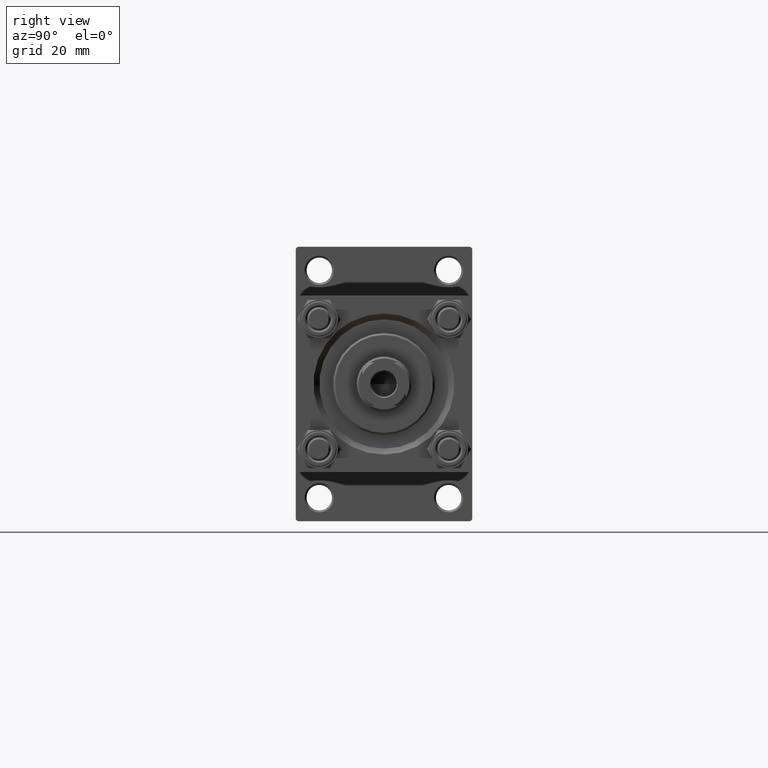
[diagram: clean part render]
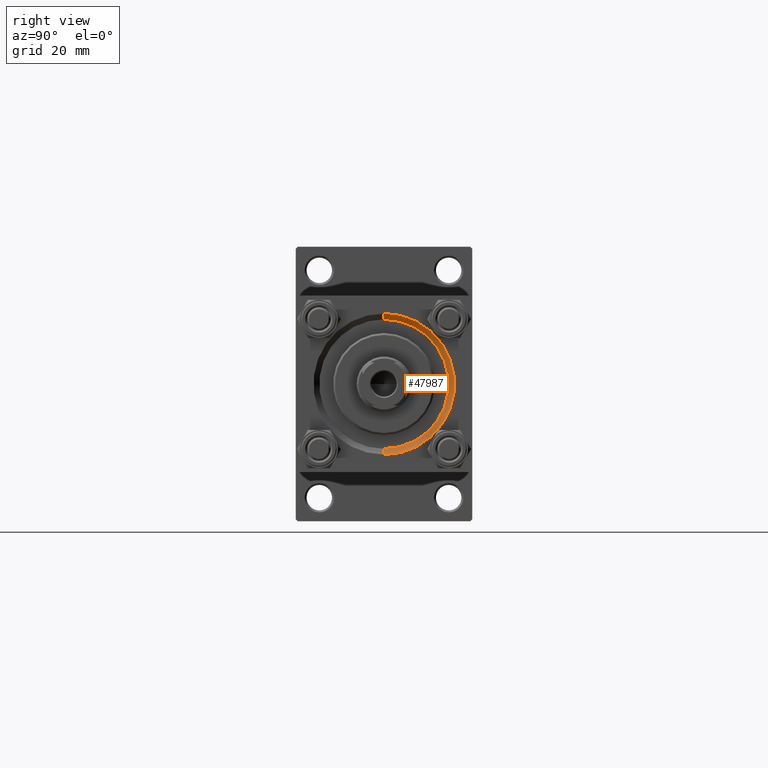
[diagram: same view with one face highlighted and labeled with its STEP entity id]
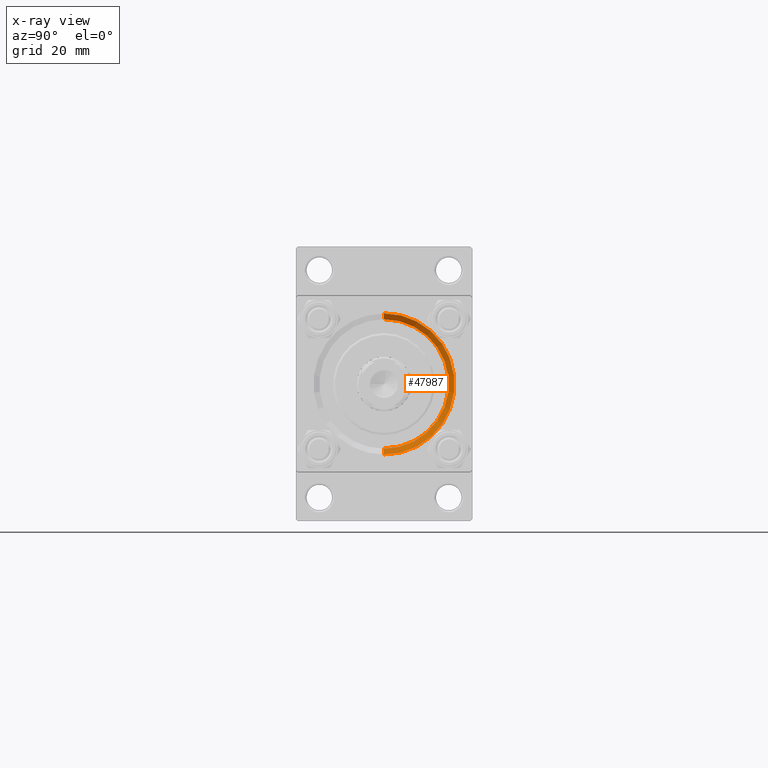
[diagram: x-ray of the same camera — body ghosted, the highlighted face saturated]
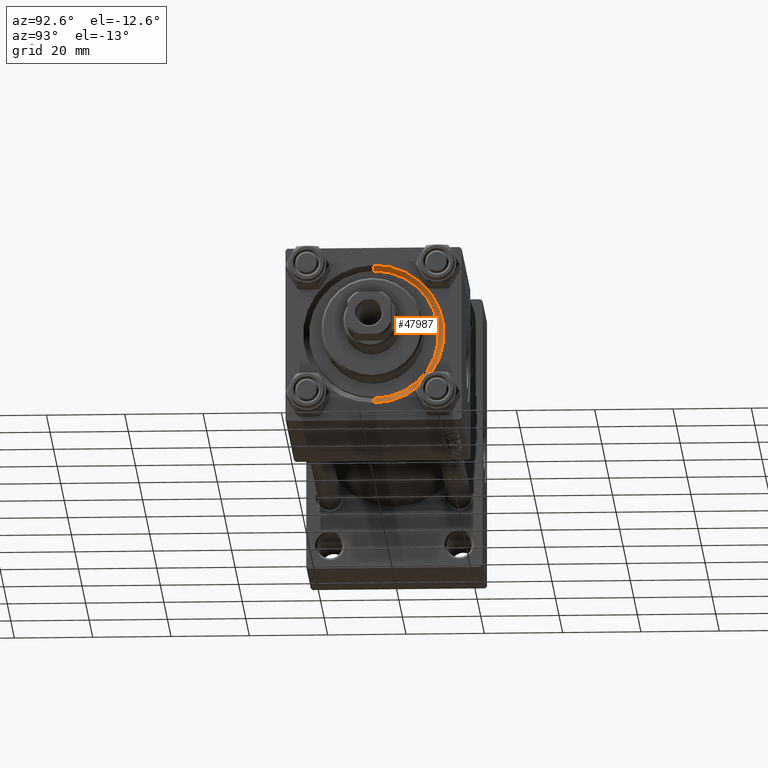
[diagram: same view with one face highlighted and labeled with its STEP entity id]
A machine part, right view. The second image highlights one B-rep face of the part: STEP entity #47987.
The next image is the same camera in x-ray: the body ghosted, the highlighted face saturated — about 0% of this face is hidden behind the body in this view.
A second angle (auxiliary view) of the same face is appended — the face is thin or edge-on in the first view.
In plain terms, the highlighted conical surface has half-angle 45 deg.
Its self-contained STEP definition (entity closure, byte-faithful):
#1167 = CONICAL_SURFACE ( 'NONE', #14881, 16.50000000000000000, 0.7853981633974482790 ) ;
#2080 = DIRECTION ( 'NONE',  ( -1.000000000000000000, 0.000000000000000000, -0.000000000000000000 ) ) ;
#3623 = EDGE_CURVE ( 'NONE', #32581, #46466, #22275, .T. ) ;
#3665 = ORIENTED_EDGE ( 'NONE', *, *, #11472, .T. ) ;
#5052 = CARTESIAN_POINT ( 'NONE',  ( 140.5000000000000000, 0.000000000000000000, 0.000000000000000000 ) ) ;
#5100 = DIRECTION ( 'NONE',  ( 0.000000000000000000, 0.000000000000000000, 1.000000000000000000 ) ) ;
#6965 = AXIS2_PLACEMENT_3D ( 'NONE', #20485, #2080, #5100 ) ;
#8619 = DIRECTION ( 'NONE',  ( 1.000000000000000000, 0.000000000000000000, 0.000000000000000000 ) ) ;
#8872 = FACE_OUTER_BOUND ( 'NONE', #12863, .T. ) ;
#11003 = CARTESIAN_POINT ( 'NONE',  ( 140.5000000000000000, 0.000000000000000000, -16.50000000000000000 ) ) ;
#11472 = EDGE_CURVE ( 'NONE', #46290, #46466, #45630, .T. ) ;
#11778 = CARTESIAN_POINT ( 'NONE',  ( 142.0000000000000284, 0.000000000000000000, -18.00000000000000355 ) ) ;
#12863 = EDGE_LOOP ( 'NONE', ( #25283, #18619, #3665, #31637 ) ) ;
#13630 = DIRECTION ( 'NONE',  ( 0.000000000000000000, 0.000000000000000000, 1.000000000000000000 ) ) ;
#14881 = AXIS2_PLACEMENT_3D ( 'NONE', #31610, #8619, #19725 ) ;
#15324 = CARTESIAN_POINT ( 'NONE',  ( 142.0000000000000284, 2.204364238465235822E-15, 18.00000000000000355 ) ) ;
#16322 = CARTESIAN_POINT ( 'NONE',  ( 140.5000000000000000, 2.020667218593133100E-15, 16.50000000000000000 ) ) ;
#16824 = LINE ( 'NONE', #16322, #40562 ) ;
#17167 = DIRECTION ( 'NONE',  ( 1.000000000000000000, 0.000000000000000000, 0.000000000000000000 ) ) ;
#18619 = ORIENTED_EDGE ( 'NONE', *, *, #29827, .F. ) ;
#19725 = DIRECTION ( 'NONE',  ( 0.000000000000000000, 0.000000000000000000, -1.000000000000000000 ) ) ;
#19939 = CIRCLE ( 'NONE', #32045, 16.50000000000000000 ) ;
#20485 = CARTESIAN_POINT ( 'NONE',  ( 142.0000000000000284, 0.000000000000000000, 0.000000000000000000 ) ) ;
#22275 = CIRCLE ( 'NONE', #6965, 18.00000000000000355 ) ;
#24838 = VECTOR ( 'NONE', #38278, 1000.000000000000114 ) ;
#25283 = ORIENTED_EDGE ( 'NONE', *, *, #47409, .F. ) ;
#29827 = EDGE_CURVE ( 'NONE', #46290, #35554, #19939, .T. ) ;
#30486 = CARTESIAN_POINT ( 'NONE',  ( 140.5000000000000000, 2.020667218593133100E-15, 16.50000000000000000 ) ) ;
#31610 = CARTESIAN_POINT ( 'NONE',  ( 140.5000000000000000, 0.000000000000000000, 0.000000000000000000 ) ) ;
#31637 = ORIENTED_EDGE ( 'NONE', *, *, #3623, .F. ) ;
#32045 = AXIS2_PLACEMENT_3D ( 'NONE', #5052, #17167, #13630 ) ;
#32581 = VERTEX_POINT ( 'NONE', #15324 ) ;
#35554 = VERTEX_POINT ( 'NONE', #30486 ) ;
#36441 = CARTESIAN_POINT ( 'NONE',  ( 140.5000000000000000, 0.000000000000000000, -16.50000000000000000 ) ) ;
#38278 = DIRECTION ( 'NONE',  ( 0.7071067811865474617, 0.000000000000000000, -0.7071067811865474617 ) ) ;
#40562 = VECTOR ( 'NONE', #43358, 1000.000000000000114 ) ;
#43358 = DIRECTION ( 'NONE',  ( 0.7071067811865474617, 8.659560562354932858E-17, 0.7071067811865474617 ) ) ;
#45630 = LINE ( 'NONE', #11003, #24838 ) ;
#46290 = VERTEX_POINT ( 'NONE', #36441 ) ;
#46466 = VERTEX_POINT ( 'NONE', #11778 ) ;
#47409 = EDGE_CURVE ( 'NONE', #35554, #32581, #16824, .T. ) ;
#47987 = ADVANCED_FACE ( 'NONE', ( #8872 ), #1167, .F. ) ;